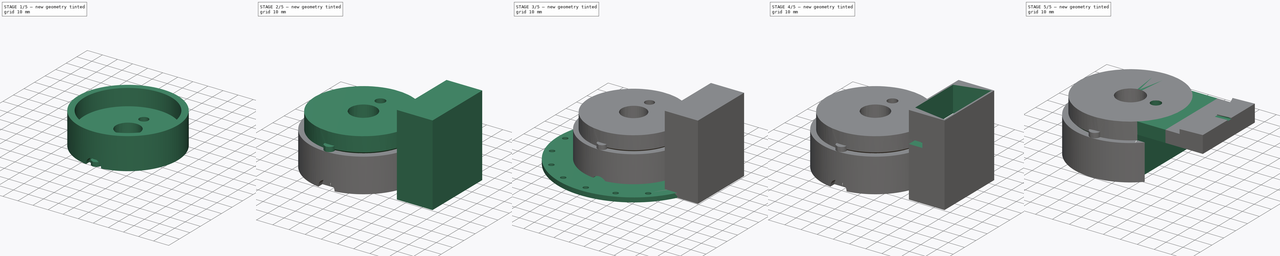
[diagram: build sequence overview — one tinted view per stage of 5, left to right]
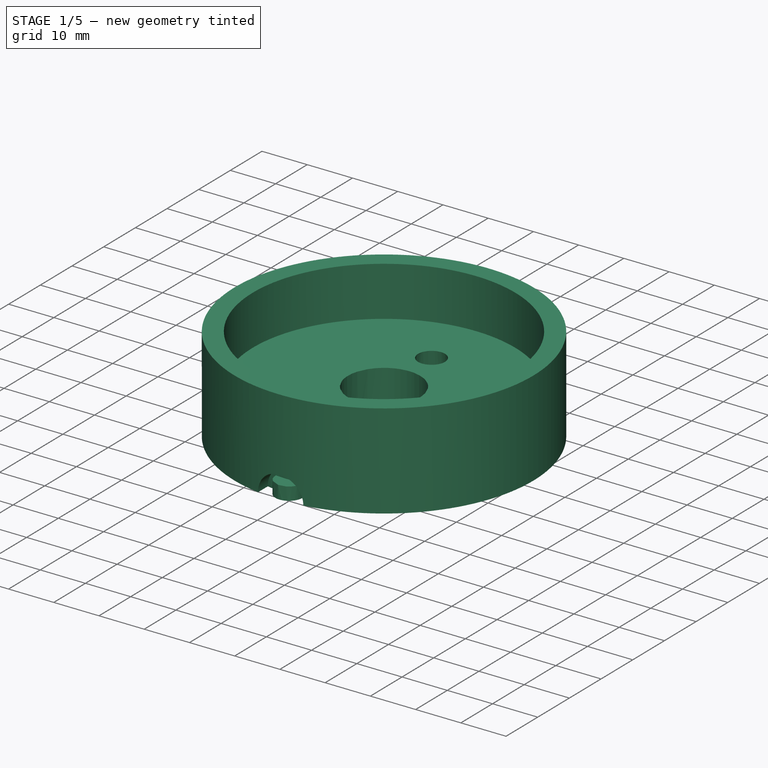
[diagram: stage 1 of 5 — iso view after this stage's code; geometry added in this stage tinted green]
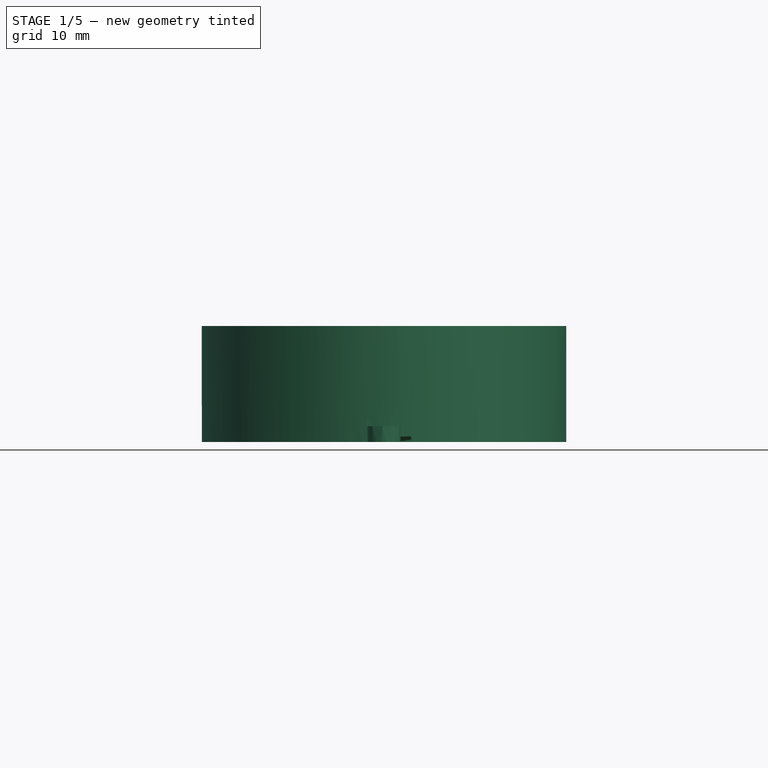
[diagram: stage 1 of 5 — front view after this stage's code; geometry added in this stage tinted green]
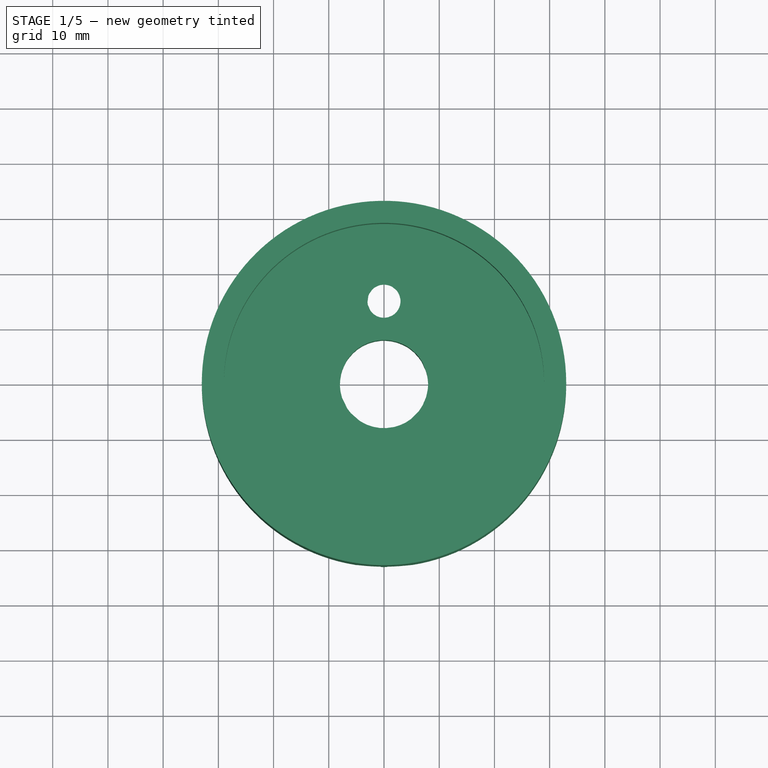
[diagram: stage 1 of 5 — top view after this stage's code; geometry added in this stage tinted green]
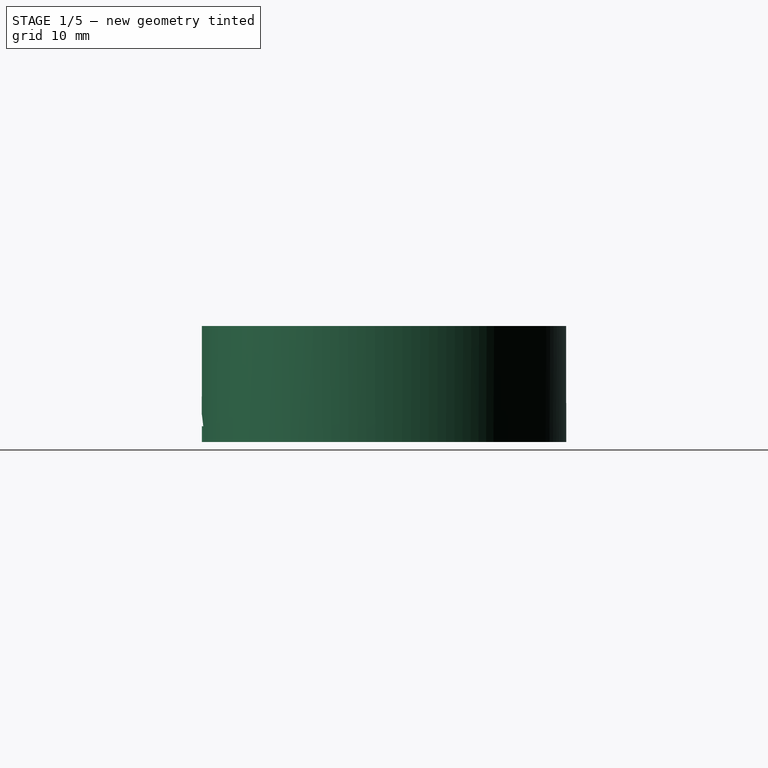
[diagram: stage 1 of 5 — right view after this stage's code; geometry added in this stage tinted green]
FCSTD DOCUMENT  (FreeCAD 0.19R24267 +148 (Git))
Label: Feeder V2
License: All rights reserved
LicenseURL: http://en.wikipedia.org/wiki/All_rights_reserved
objects: Sketcher::SketchObject×14, PartDesign::Body×13, PartDesign::FeatureBase×12, Part::FeaturePython×7, PartDesign::Plane×4, PartDesign::Pocket×4, Part::Face×3, Part::Feature×2, Part::Cut×2, Part::Compound×2, App::DocumentObjectGroup×2, Part::Extrusion×2, Part::Cylinder×1, PartDesign::Mirrored×1, PartDesign::PolarPattern×1, PartDesign::Pad×1, Part::Fuse×1, PartDesign::SubtractiveBox×1
note: 77 computed .brp shape members not serialized (recipe doc carries the construction recipe); baked Part::Feature solids carry a one-line shape summary decoded from their .brp

FEATURE [Part::Feature] FED_motor_mount001_solid  label="FED_motor_mount001 (Solid)"
  shape: bbox 65.99 x 65.99 x 13 mm, 2016 faces (baked)
FEATURE [Sketcher::SketchObject] Sketch
  FullyConstrained = false
  MapMode = 5
  Support = -> [XY_Plane]
  sketch-geometry (1):
    g0: Circle CenterX=0 CenterY=0 CenterZ=0 NormalX=0 NormalY=0 NormalZ=1 AngleXU=0 Radius=36.8064
  constraints (1):
    c: Coincident(g0,g-1)
FEATURE [PartDesign::Body] Body
  Group = -> [Sketch]
  Origin = -> Origin
FEATURE [Part::Face] Face
  FaceMakerClass = Part::FaceMakerBullseye
  Placement = pos=(0,0,10) rot=(0,0,1;0rad)
  Sources = -> [Sketch]
FEATURE [PartDesign::FeatureBase] BaseFeature
  BaseFeature = -> FED_motor_mount001_solid
FEATURE [PartDesign::Body] Body001
  BaseFeature = -> FED_motor_mount001_solid
  Group = -> [BaseFeature]
  Origin = -> Origin001
  Tip = -> BaseFeature
FEATURE [Part::FeaturePython] Slice  # WARN: FeaturePython — macro-defined, semantics opaque (R4)
  Base = -> Body001
  Mode = 1
  Tolerance = 0
  Tools = -> [Face]
FEATURE [Part::FeaturePython] Tube  # WARN: FeaturePython — macro-defined, semantics opaque (R4)
  AttacherType = Attacher::AttachEngine3D
  Height = 21
  InnerRadius = 29
  OuterRadius = 33
FEATURE [Part::Cylinder] Cylinder
  Angle = 360
  AttacherType = Attacher::AttachEngine3D
  Height = 10
  Placement = pos=(0,-29,0) rot=(1,0,0;1.5708rad)
  Radius = 5
FEATURE [PartDesign::FeatureBase] BaseFeature002
  BaseFeature = -> Tube
FEATURE [PartDesign::Body] Body003
  BaseFeature = -> Tube
  Group = -> [BaseFeature002]
  Origin = -> Origin003
  Tip = -> BaseFeature002
FEATURE [Part::Cut] Cut
  Base = -> Body003
  Tool = -> Cylinder
FEATURE [Part::FeaturePython] Slice_child0  label="Slice.0"  # WARN: FeaturePython — macro-defined, semantics opaque (R4)
  Base = -> Slice
  FilterType = 1
  Invert = false
  OverrideMaxVal = 0
  WindowFrom = 80
  WindowTo = 100
  items = 0
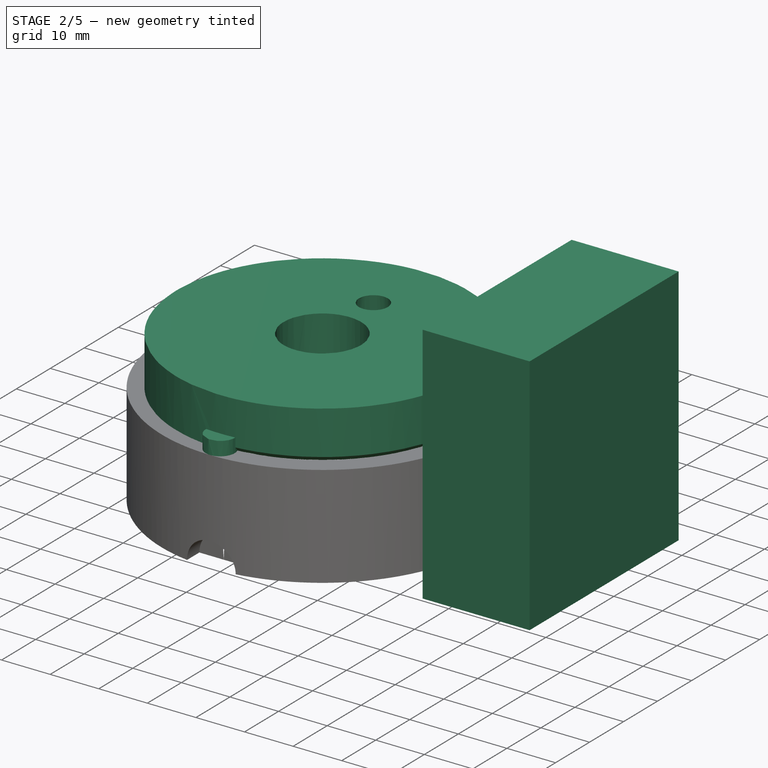
[diagram: stage 2 of 5 — iso view after this stage's code; geometry added in this stage tinted green]
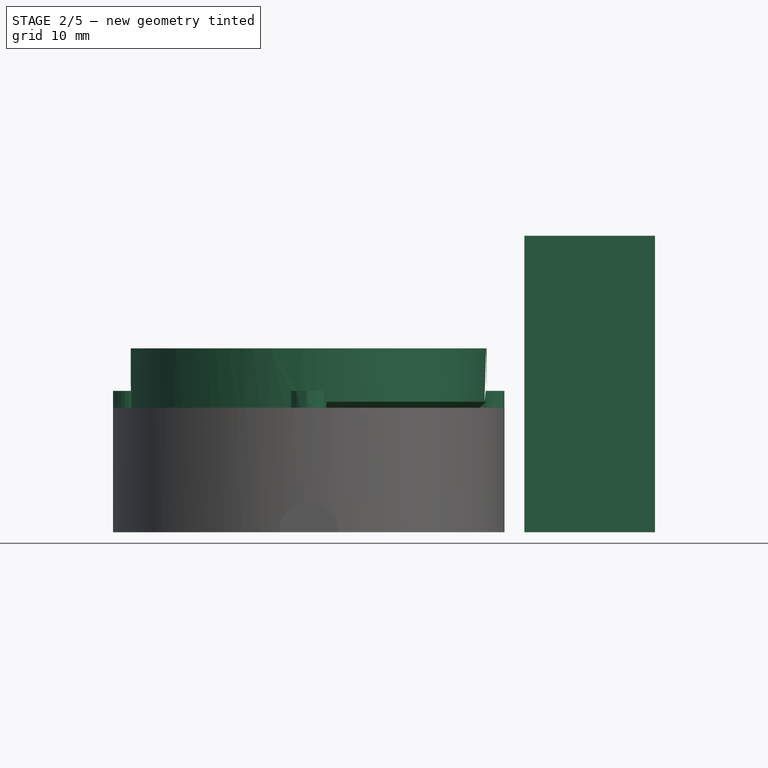
[diagram: stage 2 of 5 — front view after this stage's code; geometry added in this stage tinted green]
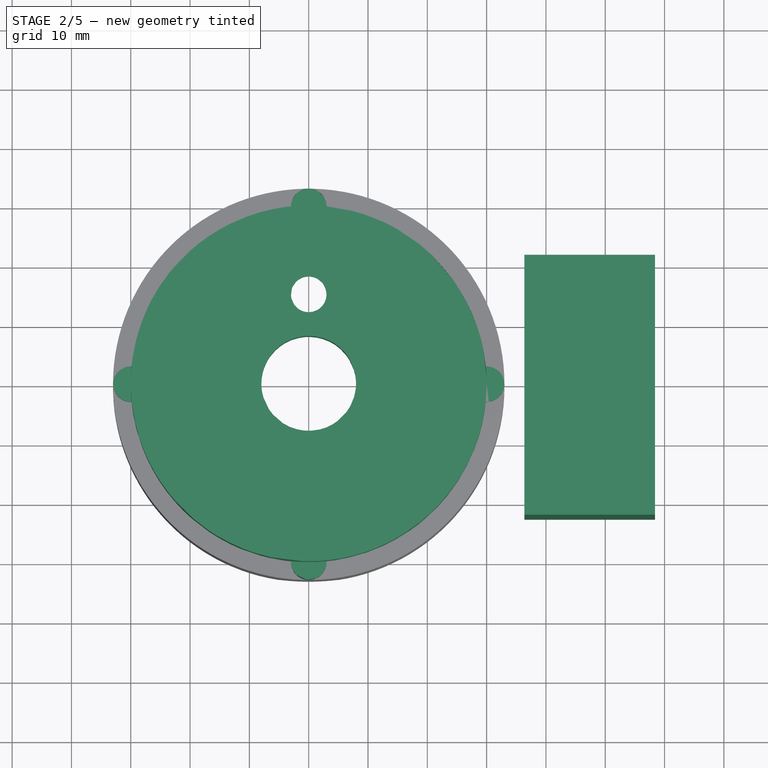
[diagram: stage 2 of 5 — top view after this stage's code; geometry added in this stage tinted green]
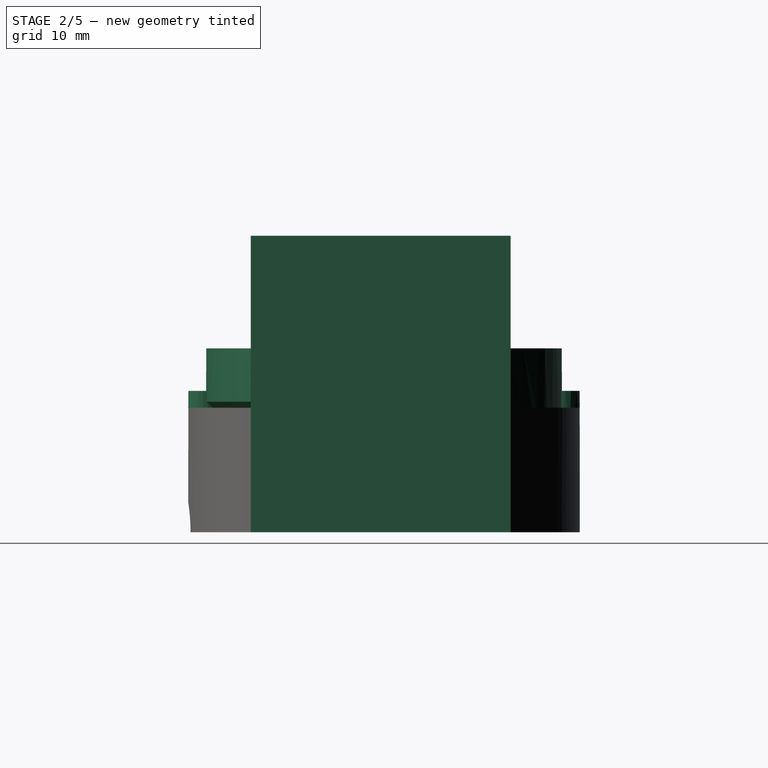
[diagram: stage 2 of 5 — right view after this stage's code; geometry added in this stage tinted green]
FEATURE [PartDesign::FeatureBase] BaseFeature003
  BaseFeature = -> Cut
FEATURE [PartDesign::Plane] DatumPlane
  Length = 105.441
  MapMode = 5
  Placement = pos=(0,0,0) rot=(1,0,0;3.14159rad)
  ResizeMode = 0
  Support = -> [BaseFeature003]
  Width = 81.4164
FEATURE [Sketcher::SketchObject] Sketch001
  FullyConstrained = false
  MapMode = 5
  Placement = pos=(0,0,0) rot=(1,0,0;3.14159rad)
  Support = -> [DatumPlane]
  sketch-geometry (1):
    g0: Circle CenterX=-30.8994 CenterY=0 CenterZ=0 NormalX=0 NormalY=0 NormalZ=1 AngleXU=0 Radius=1.03229
  constraints (1):
    c: PointOnObject(g0,g-1)
FEATURE [PartDesign::Pocket] Pocket
  BaseFeature = -> BaseFeature003
  Length = 5
  Length2 = 100
  Profile = -> Sketch001
  Type = 0
FEATURE [PartDesign::Mirrored] Mirrored
  BaseFeature = -> Pocket
  MirrorPlane = -> Sketch001 [V_Axis]
  Originals = -> [Pocket]
FEATURE [PartDesign::FeatureBase] BaseFeature001
  BaseFeature = -> Slice_child0
FEATURE [PartDesign::Body] Body002
  BaseFeature = -> Slice_child0
  Group = -> [BaseFeature001]
  Origin = -> Origin002
  Placement = pos=(0,0,21) rot=(0,0,1;0rad)
  Tip = -> BaseFeature001
FEATURE [Part::Compound] Compound
  Links = -> [Body004,Body002]
  Placement = pos=(0,0,0) rot=(0,0,-1;1.5708rad)
FEATURE [PartDesign::Body] Body008
  BaseFeature = -> Compound001
  Group = -> [BaseFeature007]
  Origin = -> Origin008
  Placement = pos=(0,0,31) rot=(0,0,1;0rad)
  Tip = -> BaseFeature007
FEATURE [Part::Extrusion] Extrude001
  Base = -> Sketch006
  Dir = (0,0,1)
  DirMode = 2
  FaceMakerClass = Part::FaceMakerBullseye
  LengthFwd = 50
  LengthRev = 0
  Solid = true
  Symmetric = false
FEATURE [PartDesign::Body] Body013
  BaseFeature = -> Slice002_child0
  Group = -> [BaseFeature012,Sketch013,Sketch014,Pocket003,Pad]
  Origin = -> Origin013
  Tip = -> Pad
FEATURE [PartDesign::FeatureBase] BaseFeature013
  BaseFeature = -> Compound
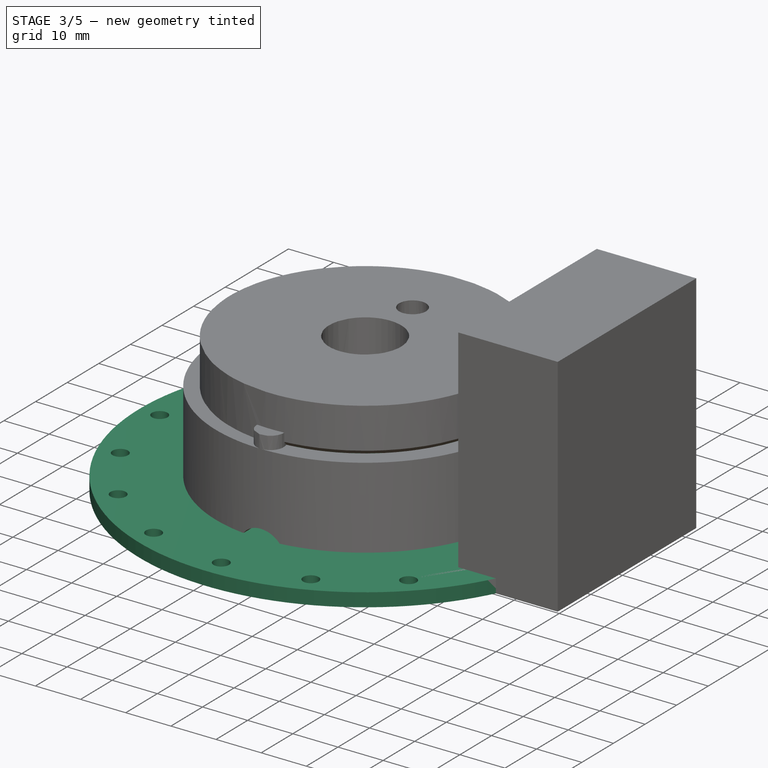
[diagram: stage 3 of 5 — iso view after this stage's code; geometry added in this stage tinted green]
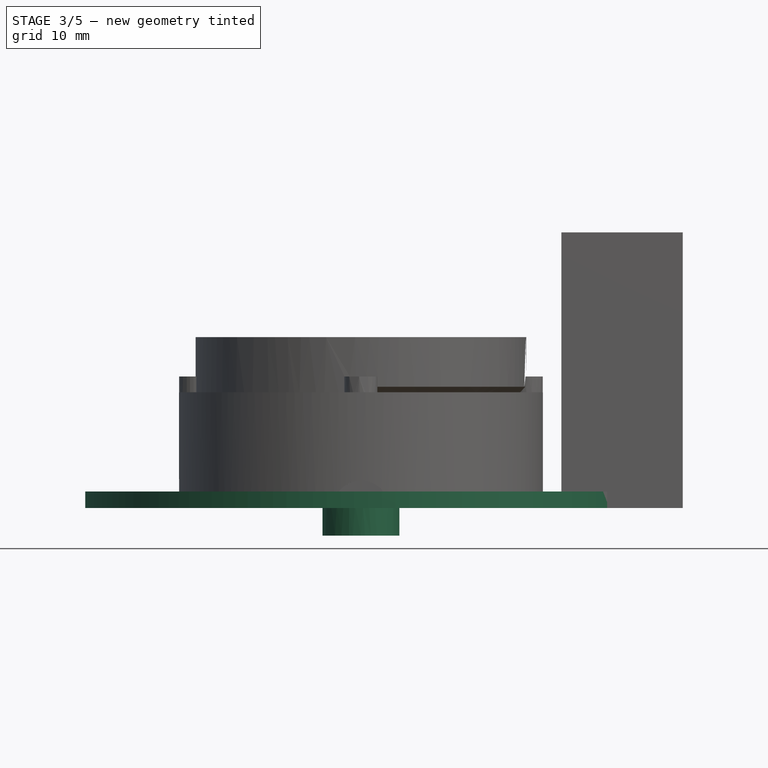
[diagram: stage 3 of 5 — front view after this stage's code; geometry added in this stage tinted green]
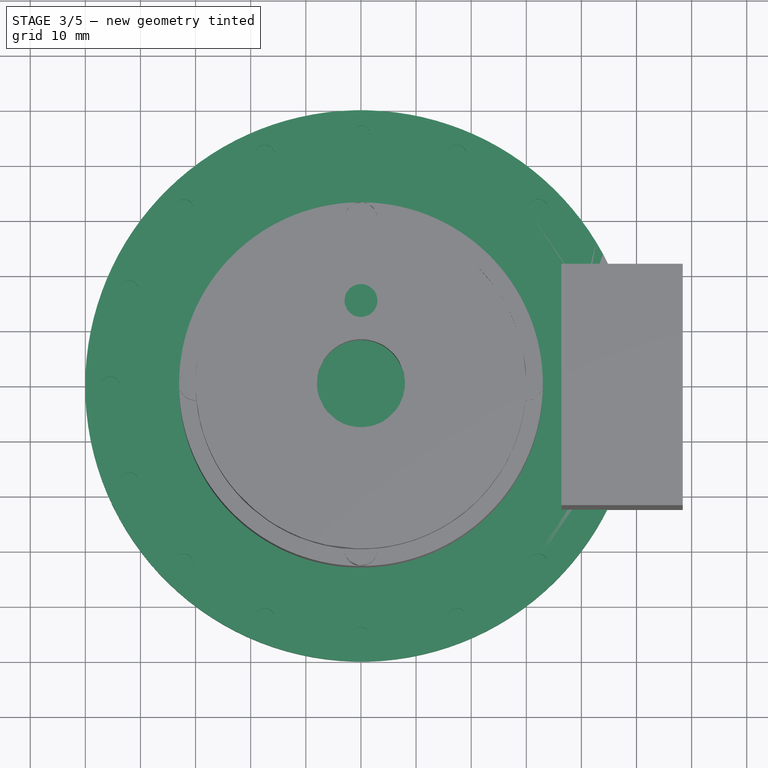
[diagram: stage 3 of 5 — top view after this stage's code; geometry added in this stage tinted green]
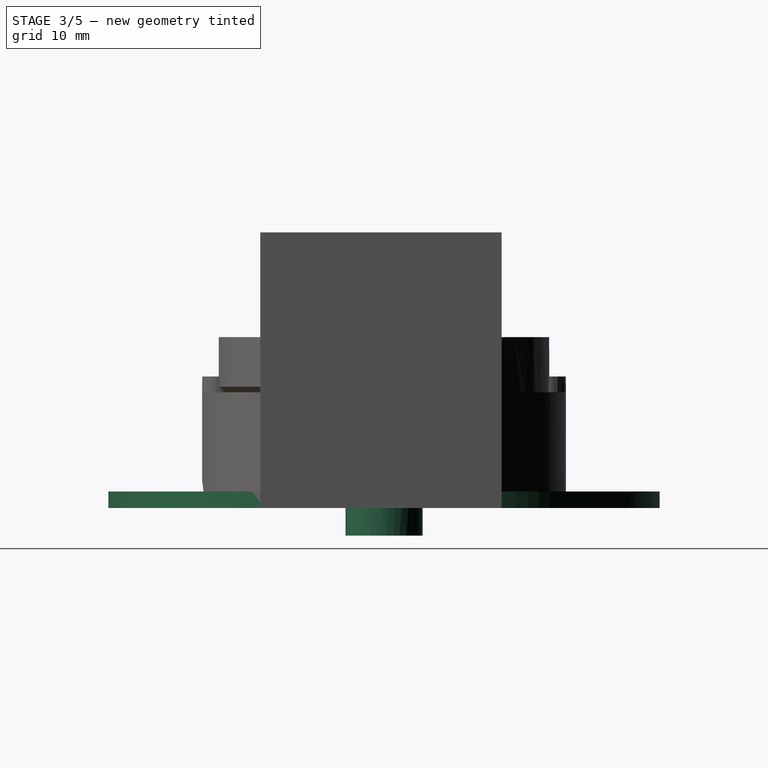
[diagram: stage 3 of 5 — right view after this stage's code; geometry added in this stage tinted green]
FEATURE [PartDesign::Plane] DatumPlane001
  Length = 60
  MapMode = 5
  Placement = pos=(37,-7,0) rot=(0.57735,0.57735,0.57735;2.0944rad)
  ResizeMode = 0
  Width = 60
FEATURE [Sketcher::SketchObject] Sketch002
  FullyConstrained = false
  MapMode = 5
  Placement = pos=(37,-7,0) rot=(0.57735,0.57735,0.57735;2.0944rad)
  sketch-geometry (4):
    g0: LineSegment StartX=-13.7793 StartY=0 StartZ=0 EndX=26.6631 EndY=0 EndZ=0
    g1: LineSegment StartX=26.6631 StartY=0 StartZ=0 EndX=26.6631 EndY=52.0531 EndZ=0
    g2: LineSegment StartX=26.6631 StartY=52.0531 StartZ=0 EndX=-13.7793 EndY=52.0531 EndZ=0
    g3: LineSegment StartX=-13.7793 StartY=52.0531 StartZ=0 EndX=-13.7793 EndY=0 EndZ=0
  constraints (9):
    c: Coincident(g0,g1)
    c: Coincident(g1,g2)
    c: Coincident(g2,g3)
    c: Coincident(g3,g0)
    c: Horizontal(g0)
    c: Horizontal(g2)
    c: Vertical(g1)
    c: Vertical(g3)
    c: PointOnObject(g0,g-1)
FEATURE [Sketcher::SketchObject] Sketch003
  FullyConstrained = false
  MapMode = 5
  Placement = pos=(37,-7,0) rot=(0.57735,0.57735,0.57735;2.0944rad)
  sketch-geometry (4):
    g0: LineSegment StartX=-20.4504 StartY=0 StartZ=0 EndX=31.6581 EndY=0 EndZ=0
    g1: LineSegment StartX=31.6581 StartY=0 StartZ=0 EndX=31.6581 EndY=43.7041 EndZ=0
    g2: LineSegment StartX=31.6581 StartY=43.7041 StartZ=0 EndX=-20.4504 EndY=43.7041 EndZ=0
    g3: LineSegment StartX=-20.4504 StartY=43.7041 StartZ=0 EndX=-20.4504 EndY=0 EndZ=0
  constraints (9):
    c: Coincident(g0,g1)
    c: Coincident(g1,g2)
    c: Coincident(g2,g3)
    c: Coincident(g3,g0)
    c: Horizontal(g0)
    c: Horizontal(g2)
    c: Vertical(g1)
    c: Vertical(g3)
    c: PointOnObject(g0,g-1)
FEATURE [Sketcher::SketchObject] Sketch004
  FullyConstrained = true
  MapMode = 5
  Support = -> [XY_Plane004]
FEATURE [Sketcher::SketchObject] Sketch005
  FullyConstrained = false
  MapMode = 5
  Support = -> [XY_Plane004]
  sketch-geometry (5):
    g0: LineSegment StartX=37.0682 StartY=-18.2985 StartZ=0 EndX=37.0682 EndY=19.0616 EndZ=0
    g1: LineSegment StartX=37.0682 StartY=19.0616 StartZ=0 EndX=49.831 EndY=27.6474 EndZ=0
    g2: LineSegment StartX=49.831 StartY=27.6474 StartZ=0 EndX=57.0245 EndY=0 EndZ=0
    g3: LineSegment StartX=57.0245 StartY=0 StartZ=0 EndX=49.1348 EndY=-26.6523 EndZ=0
    g4: LineSegment StartX=37.7644 StartY=-22.0113 StartZ=0 EndX=49.1348 EndY=-26.6523 EndZ=0
  constraints (6):
    c: Vertical(g0)
    c: Coincident(g0,g1)
    c: Coincident(g1,g2)
    c: PointOnObject(g2,g-1)
    c: Coincident(g2,g3)
    c: Coincident(g4,g3)
FEATURE [Sketcher::SketchObject] Sketch006
  FullyConstrained = false
  MapMode = 5
  Support = -> [XY_Plane004]
  sketch-geometry (4):
    g0: LineSegment StartX=36.3562 StartY=21.3498 StartZ=0 EndX=58.388 EndY=21.3498 EndZ=0
    g1: LineSegment StartX=58.388 StartY=21.3498 StartZ=0 EndX=58.388 EndY=-22.4592 EndZ=0
    g2: LineSegment StartX=58.388 StartY=-22.4592 StartZ=0 EndX=36.3562 EndY=-22.4592 EndZ=0
    g3: LineSegment StartX=36.3562 StartY=-22.4592 StartZ=0 EndX=36.3562 EndY=21.3498 EndZ=0
  constraints (8):
    c: Coincident(g0,g1)
    c: Coincident(g1,g2)
    c: Coincident(g2,g3)
    c: Coincident(g3,g0)
    c: Horizontal(g0)
    c: Horizontal(g2)
    c: Vertical(g1)
    c: Vertical(g3)
FEATURE [PartDesign::Body] Body004
  BaseFeature = -> Cut
  Group = -> [BaseFeature003,DatumPlane,Sketch001,Pocket,Mirrored,DatumPlane001,Sketch002,Sketch003,Sketch004,Sketch005,Sketch006]
  Origin = -> Origin004
  Tip = -> Mirrored
FEATURE [Sketcher::SketchObject] Sketch008
  FullyConstrained = false
  MapMode = 5
  Support = -> [XY_Plane006]
  sketch-geometry (1):
    g0: Circle CenterX=0 CenterY=0 CenterZ=0 NormalX=0 NormalY=0 NormalZ=1 AngleXU=0 Radius=50.0179
  constraints (1):
    c: Coincident(g0,g-1)
FEATURE [Sketcher::SketchObject] Sketch010
  FullyConstrained = false
  MapMode = 5
  Support = -> [XY_Plane008]
  sketch-geometry (1):
    g0: Circle CenterX=0 CenterY=-0.224607 CenterZ=0 NormalX=0 NormalY=0 NormalZ=1 AngleXU=0 Radius=24.6397
  constraints (1):
    c: PointOnObject(g0,g-2)
FEATURE [Part::Face] Face001
  FaceMakerClass = Part::FaceMakerBullseye
  Placement = pos=(0,0,3) rot=(0,0,1;0rad)
  Sources = -> [Sketch010]
FEATURE [Part::Feature] FED_20mg_pellet_disk001_solid  label="FED_20mg_pellet_disk001 (Solid)"
  shape: bbox 43.53 x 43.54 x 8.001 mm, 3062 faces (baked)
FEATURE [PartDesign::FeatureBase] BaseFeature006
  BaseFeature = -> FED_20mg_pellet_disk001_solid
FEATURE [PartDesign::Body] Body007
  BaseFeature = -> FED_20mg_pellet_disk001_solid
  Group = -> [BaseFeature006,Sketch010]
  Origin = -> Origin007
  Tip = -> BaseFeature006
FEATURE [Part::FeaturePython] Slice001  # WARN: FeaturePython — macro-defined, semantics opaque (R4)
  Base = -> Body007
  Mode = 1
  Tolerance = 0
  Tools = -> [Face001]
FEATURE [Part::FeaturePython] Slice_child1  label="Slice.1"  # WARN: FeaturePython — macro-defined, semantics opaque (R4)
  Base = -> Slice001
  FilterType = 1
  Invert = false
  OverrideMaxVal = 0
  Placement = pos=(0,0,3) rot=(1,0,0;3.14159rad)
  WindowFrom = 80
  WindowTo = 100
  items = 1
FEATURE [App::DocumentObjectGroup] GrExplode_Slice  label="Exploded Slice"
  Group = -> [Slice_child0]
FEATURE [Part::Extrusion] Extrude002
  Base = -> Sketch008
  Dir = (0,0,1)
  DirMode = 2
  FaceMakerClass = Part::FaceMakerBullseye
  LengthFwd = 3
  LengthRev = 0
  Solid = true
  Symmetric = false
FEATURE [PartDesign::FeatureBase] BaseFeature005
  BaseFeature = -> Extrude002
FEATURE [PartDesign::Plane] DatumPlane003
  Length = 119.856
  MapMode = 5
  Placement = pos=(0,0,3) rot=(0,0,1;0rad)
  ResizeMode = 0
  Support = -> [BaseFeature005]
  Width = 119.937
FEATURE [Sketcher::SketchObject] Sketch009
  FullyConstrained = false
  MapMode = 5
  Placement = pos=(0,0,3) rot=(0,0,1;0rad)
  Support = -> [DatumPlane003]
  sketch-geometry (1):
    g0: Circle CenterX=0 CenterY=45.4896 CenterZ=0 NormalX=0 NormalY=0 NormalZ=1 AngleXU=0 Radius=1.71445
  constraints (1):
    c: PointOnObject(g0,g-2)
FEATURE [PartDesign::Pocket] Pocket002
  BaseFeature = -> BaseFeature005
  Length = 2
  Length2 = 100
  Profile = -> Sketch009
  Type = 0
FEATURE [PartDesign::PolarPattern] PolarPattern
  Angle = 360
  Axis = -> Sketch009 [N_Axis]
  BaseFeature = -> Pocket002
  Occurrences = 16
  Originals = -> [Pocket002]
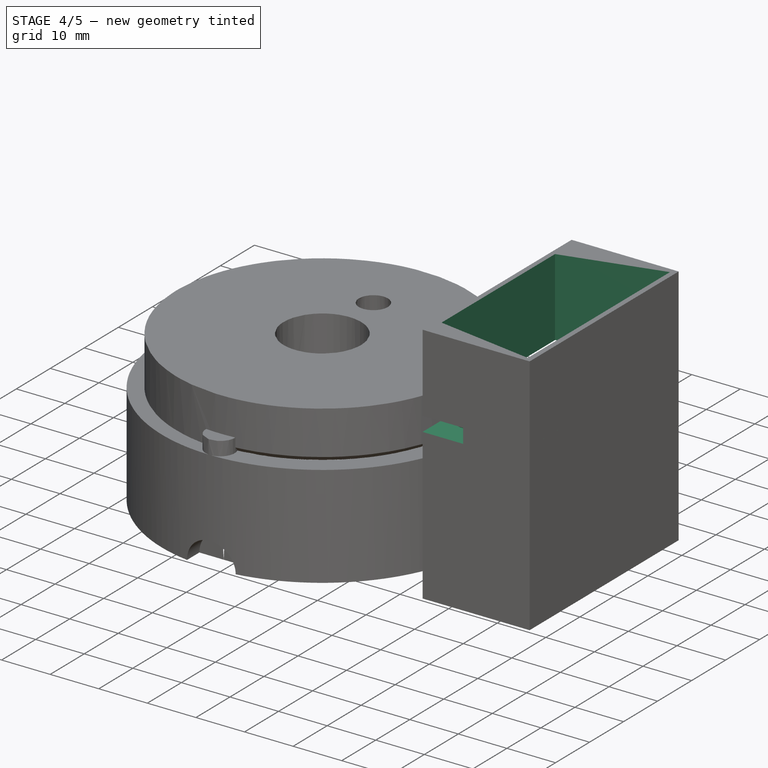
[diagram: stage 4 of 5 — iso view after this stage's code; geometry added in this stage tinted green]
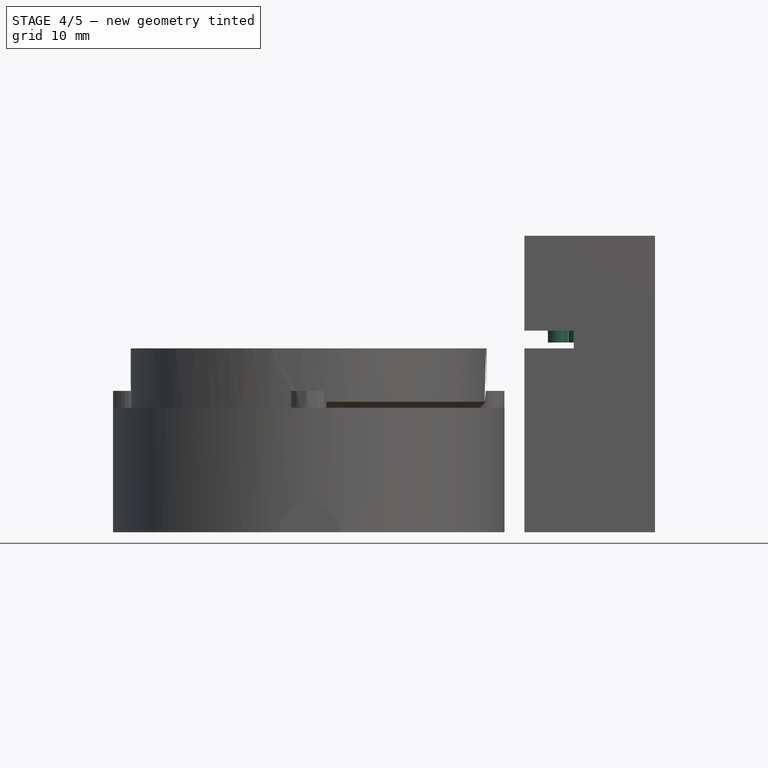
[diagram: stage 4 of 5 — front view after this stage's code; geometry added in this stage tinted green]
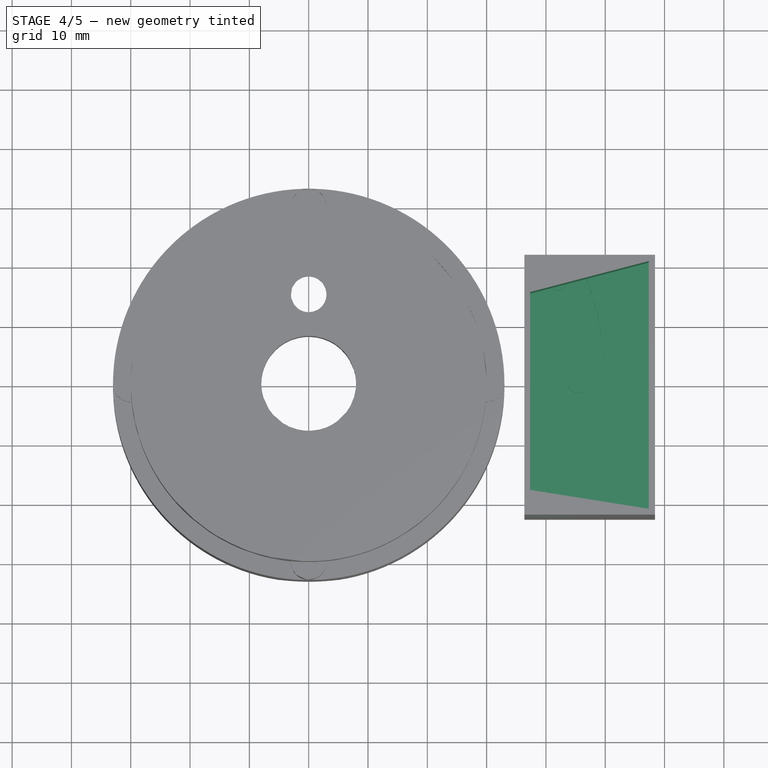
[diagram: stage 4 of 5 — top view after this stage's code; geometry added in this stage tinted green]
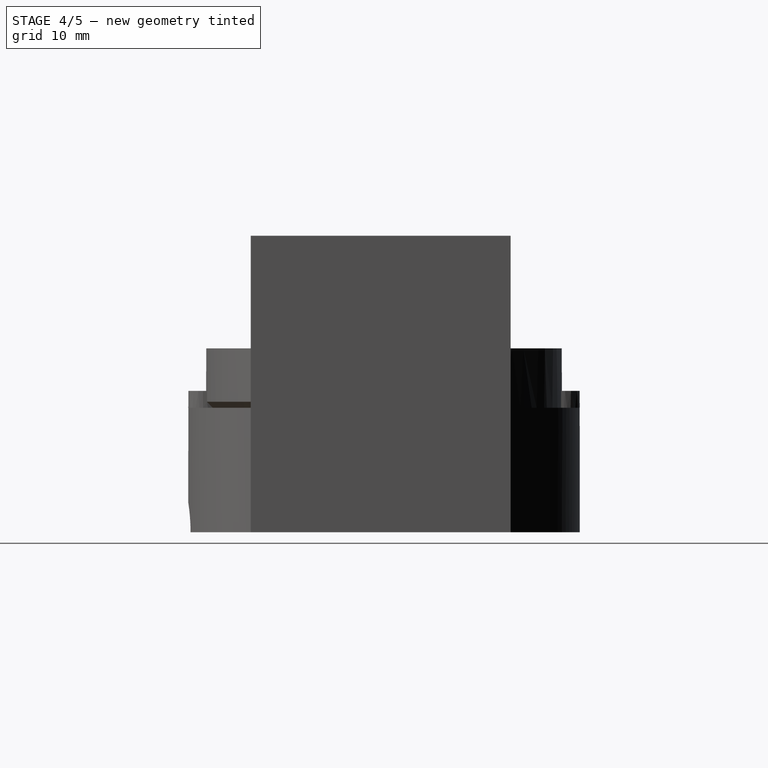
[diagram: stage 4 of 5 — right view after this stage's code; geometry added in this stage tinted green]
FEATURE [PartDesign::Body] Body006
  BaseFeature = -> Extrude002
  Group = -> [BaseFeature005,DatumPlane003,Sketch009,Pocket002,PolarPattern]
  Origin = -> Origin006
  Tip = -> PolarPattern
FEATURE [Part::Compound] Compound001
  Links = -> [Body006,Slice_child1]
FEATURE [PartDesign::FeatureBase] BaseFeature007
  BaseFeature = -> Compound001
FEATURE [PartDesign::FeatureBase] BaseFeature004
  BaseFeature = -> Extrude001
FEATURE [PartDesign::Plane] DatumPlane002
  Length = 96.3022
  MapMode = 5
  Placement = pos=(0,0,50) rot=(0,0,1;0rad)
  ResizeMode = 0
  Support = -> [BaseFeature004]
  Width = 62.9142
FEATURE [Sketcher::SketchObject] Sketch007
  FullyConstrained = false
  MapMode = 5
  Placement = pos=(0,0,50) rot=(0,0,1;0rad)
  Support = -> [DatumPlane002]
  sketch-geometry (4):
    g0: LineSegment StartX=37.3399 StartY=15.078 StartZ=0 EndX=57.3341 EndY=20.2994 EndZ=0
    g1: LineSegment StartX=57.3341 StartY=20.2994 StartZ=0 EndX=57.3341 EndY=-21.472 EndZ=0
    g2: LineSegment StartX=57.3341 StartY=-21.472 StartZ=0 EndX=37.3399 EndY=-18.2882 EndZ=0
    g3: LineSegment StartX=37.3399 StartY=-18.2882 StartZ=0 EndX=37.3399 EndY=15.078 EndZ=0
  constraints (6):
    c: Coincident(g0,g1)
    c: Vertical(g1)
    c: Coincident(g1,g2)
    c: Coincident(g2,g3)
    c: Coincident(g3,g0)
    c: Vertical(g3)
FEATURE [PartDesign::Pocket] Pocket001
  BaseFeature = -> BaseFeature004
  Length = 16
  Length2 = 100
  Profile = -> Sketch007
  Type = 0
FEATURE [PartDesign::Body] Body005
  BaseFeature = -> Extrude001
  Group = -> [BaseFeature004,DatumPlane002,Sketch007,Pocket001]
  Origin = -> Origin005
  Tip = -> Pocket001
FEATURE [Part::Cut] Cut001
  Base = -> Body005
  Tool = -> Body008
FEATURE [PartDesign::FeatureBase] BaseFeature011
  BaseFeature = -> Cut001
FEATURE [Sketcher::SketchObject] Sketch012
  FullyConstrained = false
  MapMode = 5
  Placement = pos=(0,0,34) rot=(0,0,1;0rad)
  Support = -> [BaseFeature011]
  sketch-geometry (4):
    g0: LineSegment StartX=30.9378 StartY=37.8612 StartZ=0 EndX=73.3705 EndY=37.8612 EndZ=0
    g1: LineSegment StartX=73.3705 StartY=37.8612 StartZ=0 EndX=73.3705 EndY=-38.7842 EndZ=0
    g2: LineSegment StartX=73.3705 StartY=-38.7842 StartZ=0 EndX=30.9378 EndY=-38.7842 EndZ=0
    g3: LineSegment StartX=30.9378 StartY=-38.7842 StartZ=0 EndX=30.9378 EndY=37.8612 EndZ=0
  constraints (8):
    c: Coincident(g0,g1)
    c: Coincident(g1,g2)
    c: Coincident(g2,g3)
    c: Coincident(g3,g0)
    c: Horizontal(g0)
    c: Horizontal(g2)
    c: Vertical(g1)
    c: Vertical(g3)
FEATURE [Part::Face] Face002
  FaceMakerClass = Part::FaceMakerBullseye
  Placement = pos=(0,0,-2) rot=(0,-1,0;0.034907rad)
  Sources = -> [Sketch012]
FEATURE [Part::FeaturePython] Slice002  # WARN: FeaturePython — macro-defined, semantics opaque (R4)
  Base = -> BaseFeature011
  Mode = 1
  Tolerance = 0
  Tools = -> [Face002]
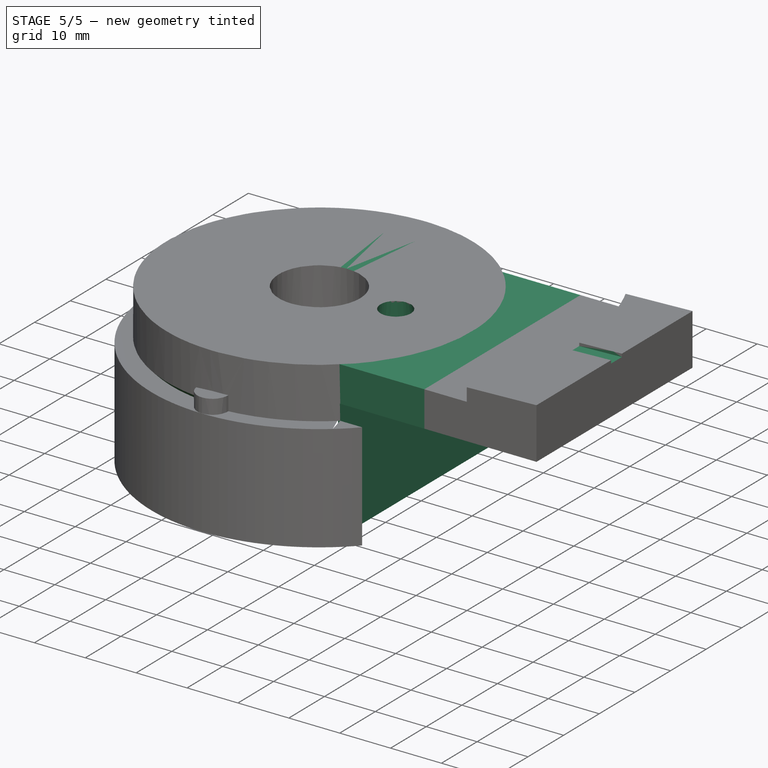
[diagram: stage 5 of 5 — iso view after this stage's code; geometry added in this stage tinted green]
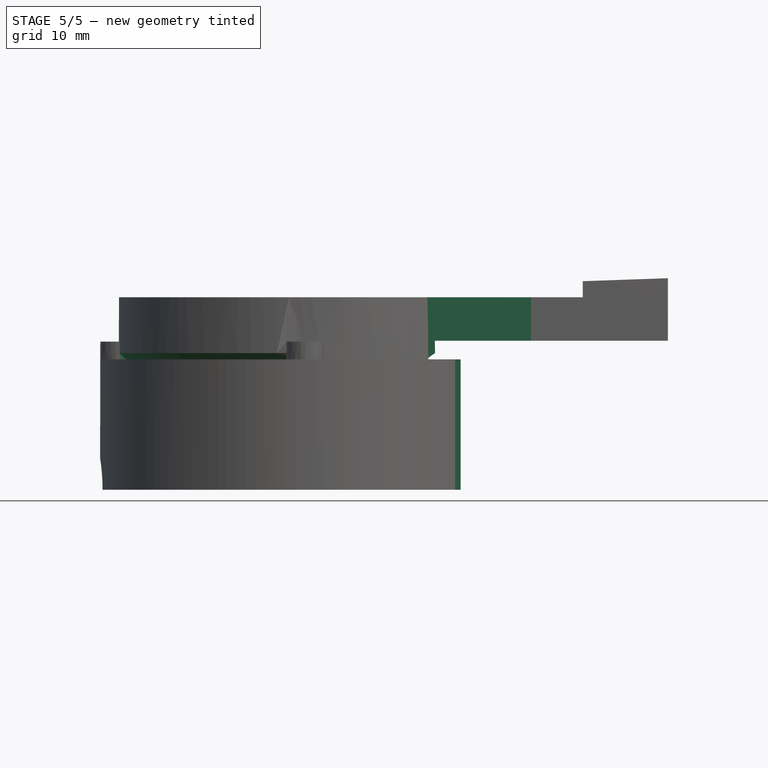
[diagram: stage 5 of 5 — front view after this stage's code; geometry added in this stage tinted green]
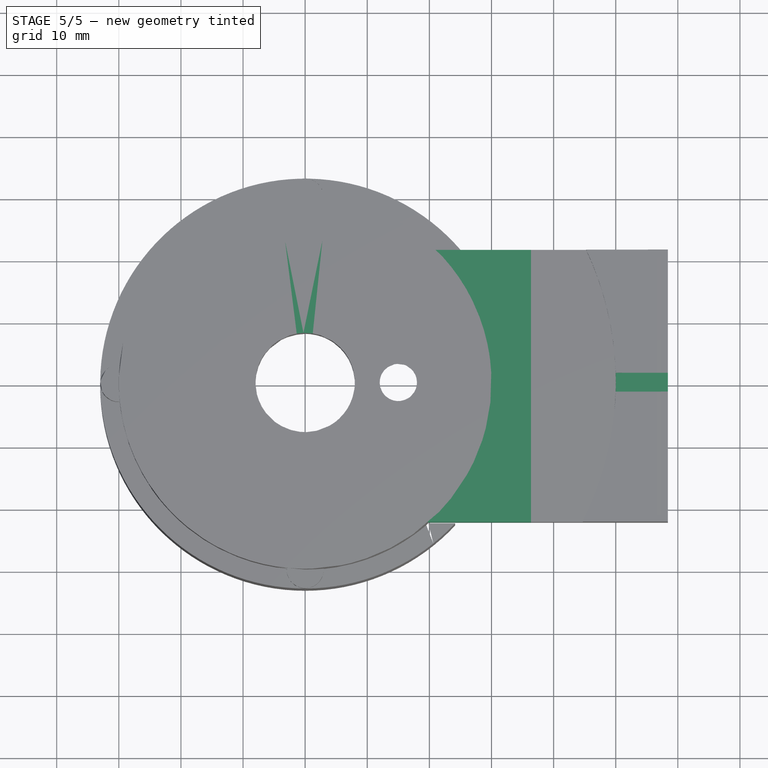
[diagram: stage 5 of 5 — top view after this stage's code; geometry added in this stage tinted green]
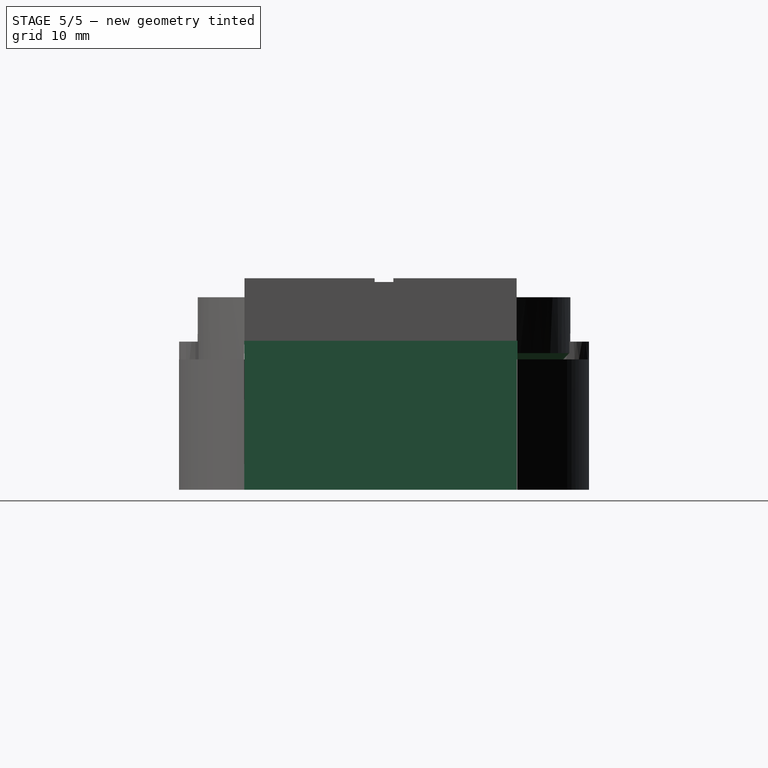
[diagram: stage 5 of 5 — right view after this stage's code; geometry added in this stage tinted green]
FEATURE [PartDesign::Body] Body012
  BaseFeature = -> Cut001
  Group = -> [BaseFeature011,Sketch012]
  Origin = -> Origin012
  Tip = -> BaseFeature011
FEATURE [Part::FeaturePython] Slice002_child0  label="Slice002.0"  # WARN: FeaturePython — macro-defined, semantics opaque (R4)
  Base = -> Slice002
  FilterType = 1
  Invert = false
  OverrideMaxVal = 0
  WindowFrom = 80
  WindowTo = 100
  items = 0
FEATURE [App::DocumentObjectGroup] GrExplode_Slice002  label="Exploded Slice002"
  Group = -> [Slice002_child0]
FEATURE [PartDesign::FeatureBase] BaseFeature012
  BaseFeature = -> Slice002_child0
FEATURE [Sketcher::SketchObject] Sketch013
  FullyConstrained = true
  MapMode = 5
  Placement = pos=(-1.11683,0,31.9817) rot=(0,-1,0;0.034907rad)
FEATURE [Sketcher::SketchObject] Sketch014
  FullyConstrained = false
  MapMode = 5
  Placement = pos=(-1.11683,0,31.9817) rot=(0,-1,0;0.034907rad)
  sketch-geometry (4):
    g0: LineSegment StartX=50.7776 StartY=1.51671 StartZ=0 EndX=59.838 EndY=1.51671 EndZ=0
    g1: LineSegment StartX=59.838 StartY=1.51671 StartZ=0 EndX=59.838 EndY=-1.51671 EndZ=0
    g2: LineSegment StartX=59.838 StartY=-1.51671 StartZ=0 EndX=50.7776 EndY=-1.51671 EndZ=0
    g3: LineSegment StartX=50.7776 StartY=-1.51671 StartZ=0 EndX=50.7776 EndY=1.51671 EndZ=0
  constraints (8):
    c: Coincident(g0,g1)
    c: Coincident(g1,g2)
    c: Coincident(g2,g3)
    c: Coincident(g3,g0)
    c: Horizontal(g0)
    c: Horizontal(g2)
    c: Vertical(g1)
    c: Symmetric(g0,g2,g-1)
FEATURE [PartDesign::Pocket] Pocket003
  BaseFeature = -> BaseFeature012
  Length = 0.6
  Length2 = 100
  Profile = -> Sketch014
  Type = 0
FEATURE [PartDesign::Pad] Pad
  BaseFeature = -> Pocket003
  Direction = (1,1,1)
  Length = 17
  Length2 = 100
  Profile = -> Pocket003 [Face7]
  Type = 0
FEATURE [PartDesign::Body] Body014
  BaseFeature = -> Compound
  Group = -> [BaseFeature013]
  Origin = -> Origin014
  Placement = pos=(0,0,0) rot=(0,0,-1;1.5708rad)
  Tip = -> BaseFeature013
FEATURE [Part::Fuse] Fusion
  Base = -> Body013
  Tool = -> Body014
FEATURE [PartDesign::FeatureBase] BaseFeature014
  BaseFeature = -> Fusion
FEATURE [PartDesign::SubtractiveBox] Box
  AttacherType = Attacher::AttachEngine3D
  AttachmentOffset = pos=(-22.5,0,-39) rot=(0,0,1;0rad)
  BaseFeature = -> BaseFeature014
  Height = 39
  Length = 44
  MapMode = 5
  Placement = pos=(19.388,-22.5,0) rot=(0.57735,0.57735,0.57735;2.0944rad)
  Support = -> [BaseFeature014]
  Width = 24
FEATURE [PartDesign::Body] Body015
  BaseFeature = -> Fusion
  Group = -> [BaseFeature014,Box]
  Origin = -> Origin015
  Tip = -> Box
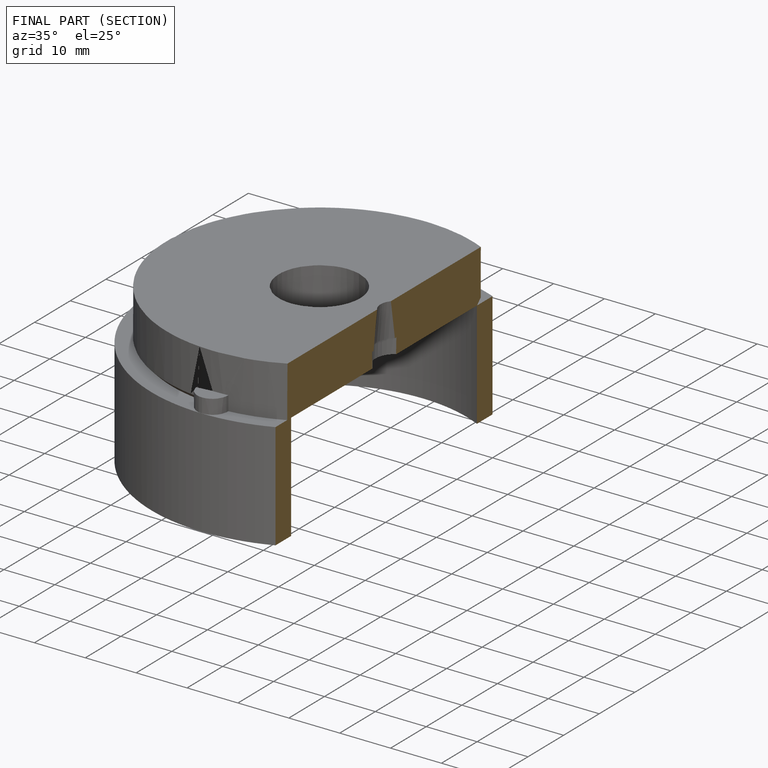
[diagram: finished part — half-section view (interior)]
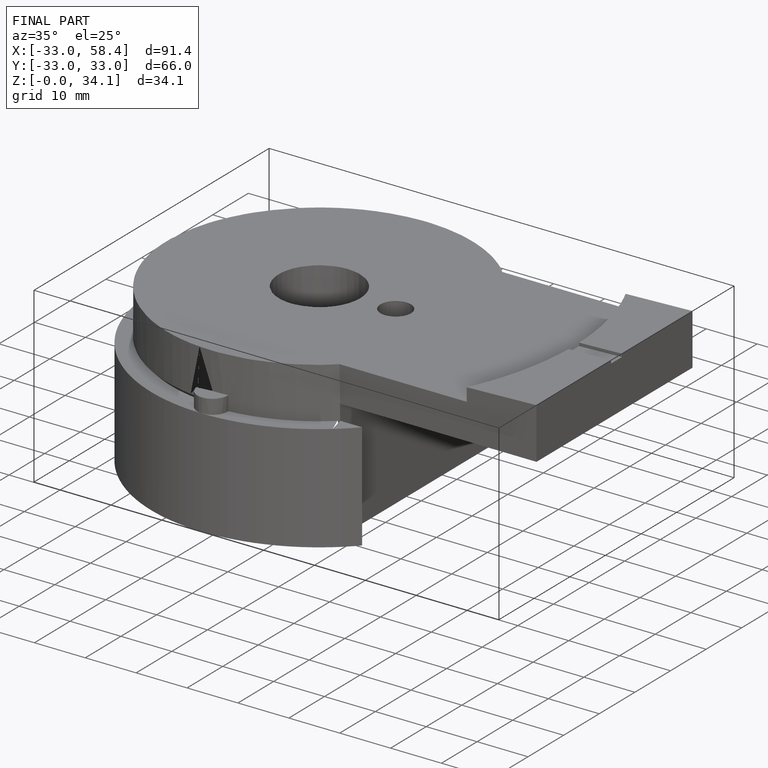
[diagram: finished part — iso view with bounding-box wireframe]
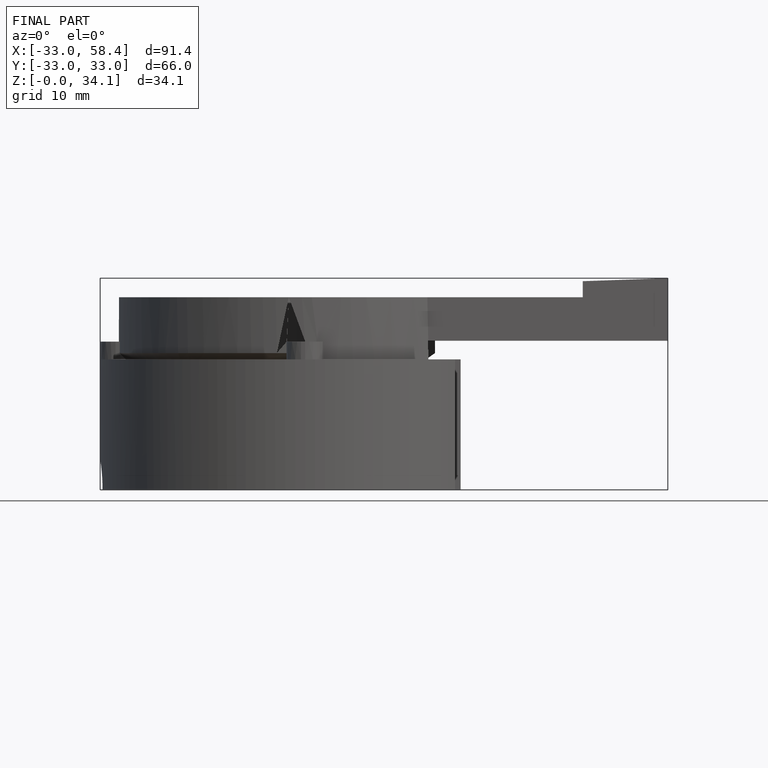
[diagram: finished part — front view with bounding-box wireframe]
